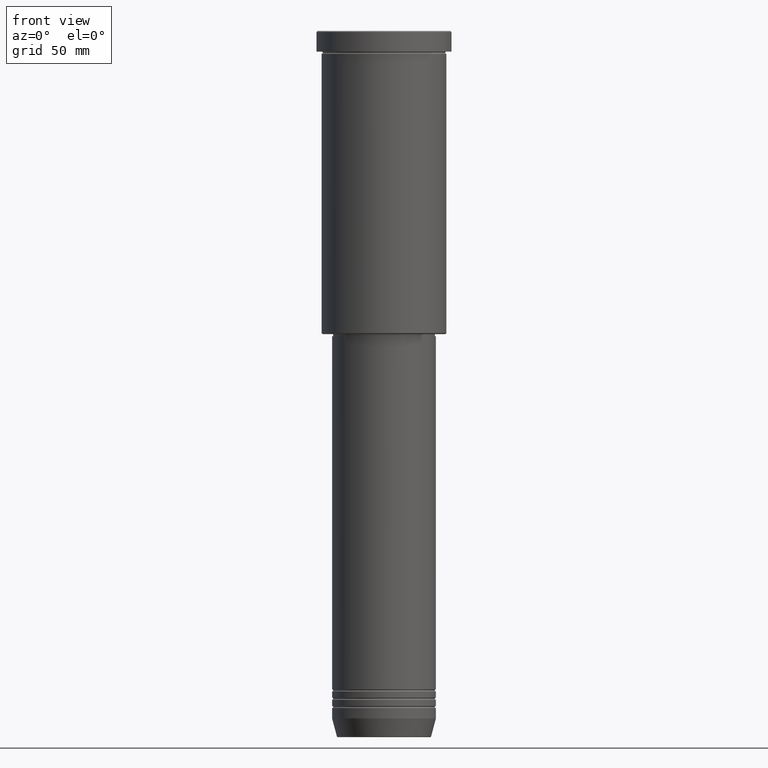
[diagram: clean part render]
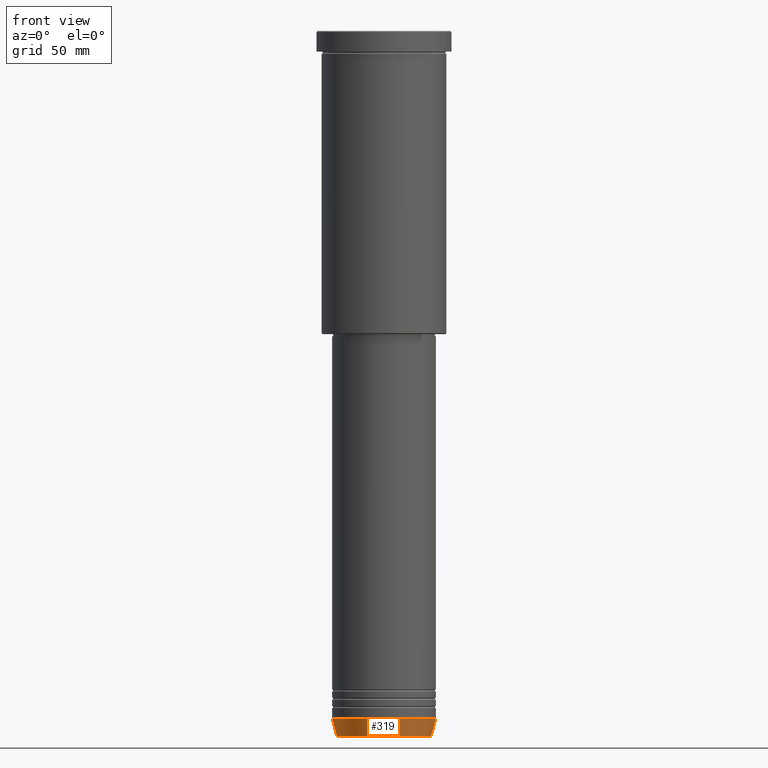
[diagram: same view with one face highlighted and labeled with its STEP entity id]
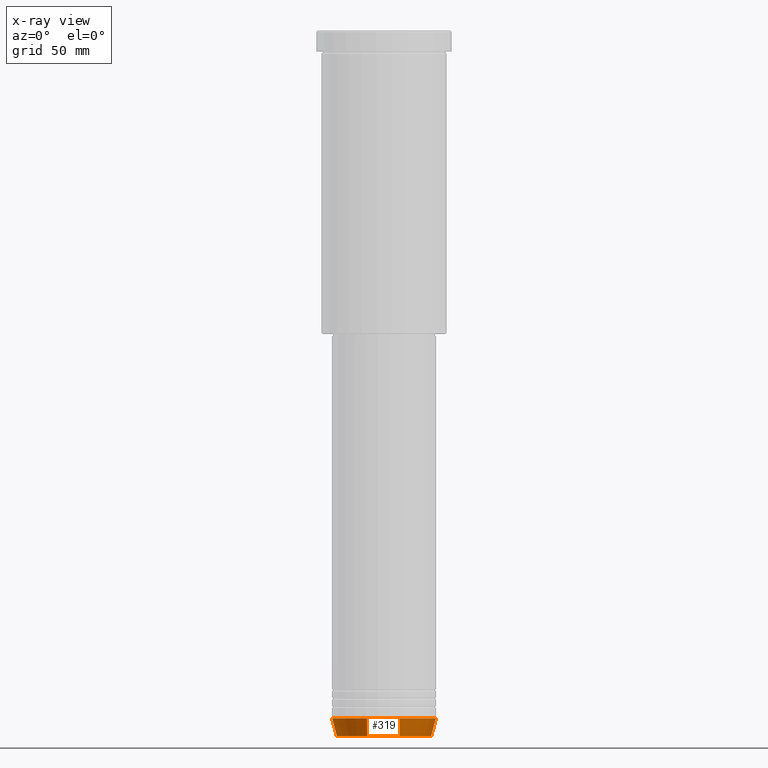
[diagram: x-ray of the same camera — body ghosted, the highlighted face saturated]
A machine part, front view. The second image highlights one B-rep face of the part: STEP entity #319.
The next image is the same camera in x-ray: the body ghosted, the highlighted face saturated — about 0% of this face is hidden behind the body in this view.
In plain terms, the highlighted conical surface has half-angle 15 deg.
Its self-contained STEP definition (entity closure, byte-faithful):
#20 = AXIS2_PLACEMENT_3D ( 'NONE', #926, #941, #465 ) ;
#41 = VERTEX_POINT ( 'NONE', #310 ) ;
#110 = CARTESIAN_POINT ( 'NONE',  ( 25.00000000000000000, 0.000000000000000000, -331.0000000000000000 ) ) ;
#133 = EDGE_CURVE ( 'NONE', #880, #188, #937, .T. ) ;
#161 = DIRECTION ( 'NONE',  ( 0.2588190451025215166, 0.000000000000000000, 0.9659258262890679791 ) ) ;
#188 = VERTEX_POINT ( 'NONE', #110 ) ;
#189 = DIRECTION ( 'NONE',  ( -0.000000000000000000, -0.000000000000000000, 1.000000000000000000 ) ) ;
#205 = DIRECTION ( 'NONE',  ( 1.000000000000000000, 0.000000000000000000, 0.000000000000000000 ) ) ;
#225 = CARTESIAN_POINT ( 'NONE',  ( -25.00000000000000000, 3.061616997868383043E-15, -331.0000000000000000 ) ) ;
#246 = VECTOR ( 'NONE', #905, 1000.000000000000114 ) ;
#248 = CIRCLE ( 'NONE', #705, 22.68775668727494477 ) ;
#310 = CARTESIAN_POINT ( 'NONE',  ( -22.68775668727494477, 2.920032929279452581E-15, -339.6294095225512706 ) ) ;
#319 = ADVANCED_FACE ( 'NONE', ( #555 ), #530, .T. ) ;
#387 = CARTESIAN_POINT ( 'NONE',  ( 0.000000000000000000, 0.000000000000000000, -339.6294095225512706 ) ) ;
#432 = ORIENTED_EDGE ( 'NONE', *, *, #637, .F. ) ;
#465 = DIRECTION ( 'NONE',  ( 1.000000000000000000, 0.000000000000000000, 0.000000000000000000 ) ) ;
#479 = ORIENTED_EDGE ( 'NONE', *, *, #133, .F. ) ;
#530 = CONICAL_SURFACE ( 'NONE', #20, 25.00000000000000000, 0.2617993877991502960 ) ;
#555 = FACE_OUTER_BOUND ( 'NONE', #1026, .T. ) ;
#562 = ORIENTED_EDGE ( 'NONE', *, *, #1055, .T. ) ;
#637 = EDGE_CURVE ( 'NONE', #41, #880, #1044, .T. ) ;
#646 = EDGE_CURVE ( 'NONE', #1076, #188, #980, .T. ) ;
#650 = CARTESIAN_POINT ( 'NONE',  ( -25.00000000000000000, 3.061616997868383043E-15, -331.0000000000000000 ) ) ;
#705 = AXIS2_PLACEMENT_3D ( 'NONE', #387, #749, #1033 ) ;
#749 = DIRECTION ( 'NONE',  ( -0.000000000000000000, -0.000000000000000000, 1.000000000000000000 ) ) ;
#791 = CARTESIAN_POINT ( 'NONE',  ( 25.00000000000000000, 0.000000000000000000, -331.0000000000000000 ) ) ;
#814 = CARTESIAN_POINT ( 'NONE',  ( 0.000000000000000000, 0.000000000000000000, -331.0000000000000000 ) ) ;
#880 = VERTEX_POINT ( 'NONE', #650 ) ;
#905 = DIRECTION ( 'NONE',  ( -0.2588190451025215166, 3.169619151431774802E-17, 0.9659258262890679791 ) ) ;
#917 = ORIENTED_EDGE ( 'NONE', *, *, #646, .T. ) ;
#926 = CARTESIAN_POINT ( 'NONE',  ( 0.000000000000000000, 0.000000000000000000, -331.0000000000000000 ) ) ;
#937 = CIRCLE ( 'NONE', #994, 25.00000000000000000 ) ;
#941 = DIRECTION ( 'NONE',  ( -0.000000000000000000, -0.000000000000000000, 1.000000000000000000 ) ) ;
#980 = LINE ( 'NONE', #791, #992 ) ;
#992 = VECTOR ( 'NONE', #161, 1000.000000000000114 ) ;
#994 = AXIS2_PLACEMENT_3D ( 'NONE', #814, #189, #205 ) ;
#1026 = EDGE_LOOP ( 'NONE', ( #432, #562, #917, #479 ) ) ;
#1033 = DIRECTION ( 'NONE',  ( 1.000000000000000000, 0.000000000000000000, 0.000000000000000000 ) ) ;
#1044 = LINE ( 'NONE', #225, #246 ) ;
#1055 = EDGE_CURVE ( 'NONE', #41, #1076, #248, .T. ) ;
#1060 = CARTESIAN_POINT ( 'NONE',  ( 22.68775668727494477, 0.000000000000000000, -339.6294095225512706 ) ) ;
#1076 = VERTEX_POINT ( 'NONE', #1060 ) ;